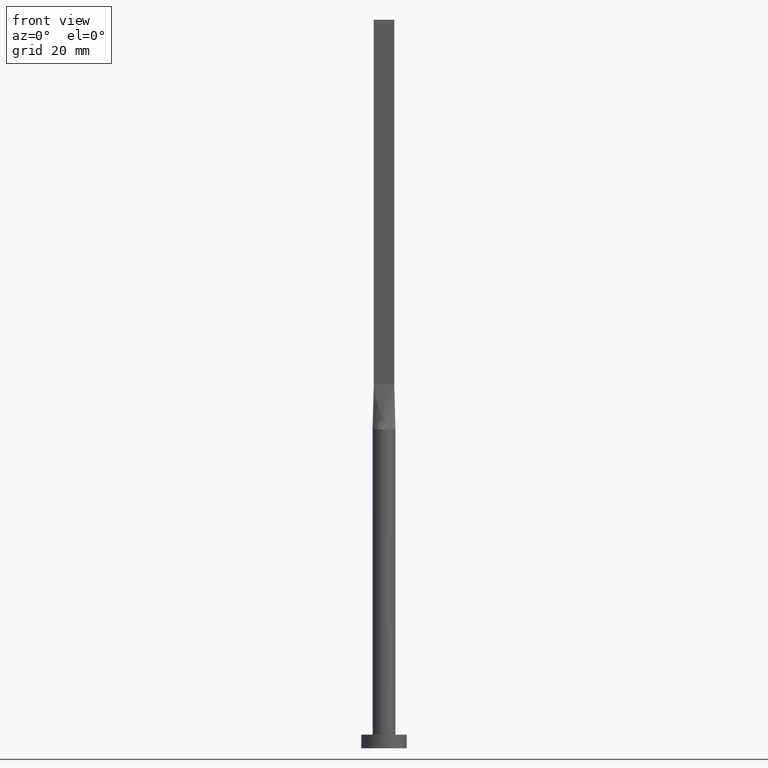
[diagram: clean part render]
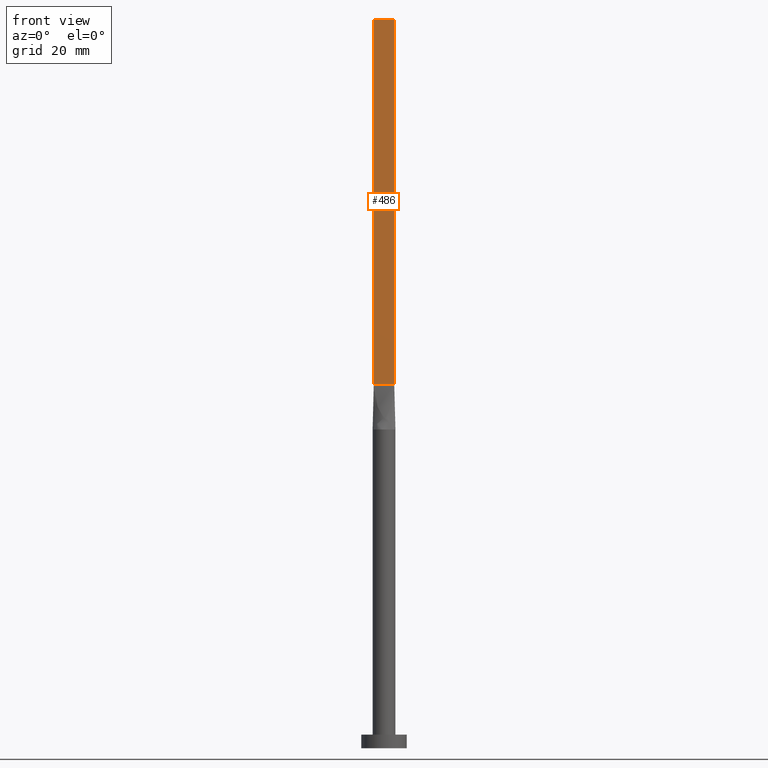
[diagram: same view with one face highlighted and labeled with its STEP entity id]
A machine part, front view. The second image highlights one B-rep face of the part: STEP entity #486.
In plain terms, the highlighted planar face has unit normal (0, 1, -0).
Its self-contained STEP definition (entity closure, byte-faithful):
#16 = PLANE ( 'NONE',  #306 ) ;
#17 = DIRECTION ( 'NONE',  ( 1.000000000000000000, -7.228014483236697048E-17, 0.000000000000000000 ) ) ;
#25 = CARTESIAN_POINT ( 'NONE',  ( -2.250000000000000000, -0.5999999999999994227, 160.0000000000000000 ) ) ;
#35 = EDGE_CURVE ( 'NONE', #93, #501, #558, .T. ) ;
#50 = ORIENTED_EDGE ( 'NONE', *, *, #143, .F. ) ;
#56 = EDGE_CURVE ( 'NONE', #501, #498, #107, .T. ) ;
#69 = CARTESIAN_POINT ( 'NONE',  ( -2.250000000000000000, -0.5999999999999994227, 160.0000000000000000 ) ) ;
#93 = VERTEX_POINT ( 'NONE', #69 ) ;
#105 = CARTESIAN_POINT ( 'NONE',  ( -2.250000000000000000, -0.5999999999999994227, 80.00000000000000000 ) ) ;
#106 = DIRECTION ( 'NONE',  ( 7.228014483236697048E-17, 1.000000000000000000, -0.000000000000000000 ) ) ;
#107 = LINE ( 'NONE', #105, #434 ) ;
#125 = VECTOR ( 'NONE', #17, 1000.000000000000000 ) ;
#127 = CARTESIAN_POINT ( 'NONE',  ( 2.250000000000000000, -0.5999999999999997558, 160.0000000000000000 ) ) ;
#140 = EDGE_LOOP ( 'NONE', ( #184, #50, #164, #456 ) ) ;
#143 = EDGE_CURVE ( 'NONE', #549, #498, #418, .T. ) ;
#151 = EDGE_CURVE ( 'NONE', #93, #549, #373, .T. ) ;
#152 = CARTESIAN_POINT ( 'NONE',  ( -2.250000000000000000, -0.5999999999999994227, 160.0000000000000000 ) ) ;
#164 = ORIENTED_EDGE ( 'NONE', *, *, #151, .F. ) ;
#184 = ORIENTED_EDGE ( 'NONE', *, *, #56, .T. ) ;
#248 = CARTESIAN_POINT ( 'NONE',  ( -2.250000000000000000, -0.5999999999999994227, 160.0000000000000000 ) ) ;
#254 = VECTOR ( 'NONE', #255, 1000.000000000000000 ) ;
#255 = DIRECTION ( 'NONE',  ( -0.000000000000000000, -0.000000000000000000, -1.000000000000000000 ) ) ;
#288 = DIRECTION ( 'NONE',  ( -1.000000000000000000, 7.228014483236697048E-17, 0.000000000000000000 ) ) ;
#305 = VECTOR ( 'NONE', #473, 1000.000000000000000 ) ;
#306 = AXIS2_PLACEMENT_3D ( 'NONE', #152, #106, #288 ) ;
#309 = CARTESIAN_POINT ( 'NONE',  ( -2.250000000000000000, -0.5999999999999994227, 80.00000000000000000 ) ) ;
#341 = CARTESIAN_POINT ( 'NONE',  ( 2.250000000000000000, -0.5999999999999997558, 80.00000000000000000 ) ) ;
#373 = LINE ( 'NONE', #25, #125 ) ;
#415 = CARTESIAN_POINT ( 'NONE',  ( 2.250000000000000000, -0.5999999999999997558, 160.0000000000000000 ) ) ;
#417 = FACE_OUTER_BOUND ( 'NONE', #140, .T. ) ;
#418 = LINE ( 'NONE', #415, #254 ) ;
#434 = VECTOR ( 'NONE', #471, 1000.000000000000000 ) ;
#456 = ORIENTED_EDGE ( 'NONE', *, *, #35, .T. ) ;
#471 = DIRECTION ( 'NONE',  ( 1.000000000000000000, -7.228014483236697048E-17, 0.000000000000000000 ) ) ;
#473 = DIRECTION ( 'NONE',  ( -0.000000000000000000, -0.000000000000000000, -1.000000000000000000 ) ) ;
#486 = ADVANCED_FACE ( 'NONE', ( #417 ), #16, .F. ) ;
#498 = VERTEX_POINT ( 'NONE', #341 ) ;
#501 = VERTEX_POINT ( 'NONE', #309 ) ;
#549 = VERTEX_POINT ( 'NONE', #127 ) ;
#558 = LINE ( 'NONE', #248, #305 ) ;